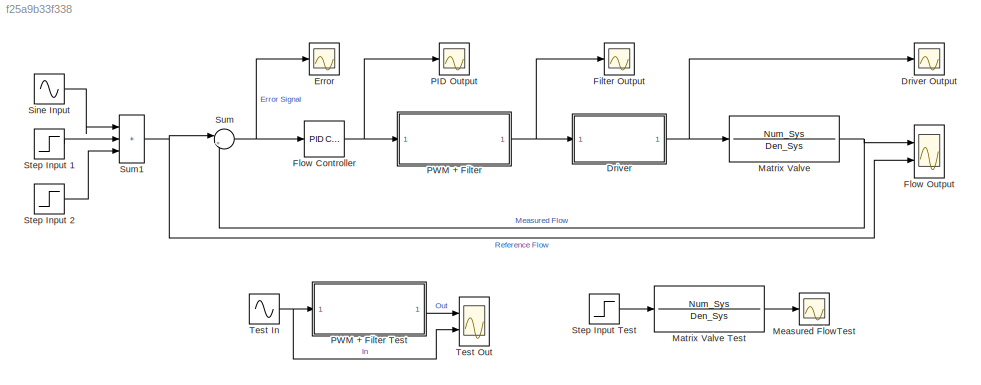
MODEL slx_f25a9b33f338
KIND model
CONFIG AbsTol = auto
CONFIG EnableMultiTasking = off
CONFIG FixedStep = auto
CONFIG MaxStep = auto
CONFIG MinStep = auto
CONFIG RelTol = 1e-3
CONFIG SampleTimeConstraint = Unconstrained
CONFIG SolverName = VariableStepAuto
CONFIG StartTime = 0.0
CONFIG StopTime = 5
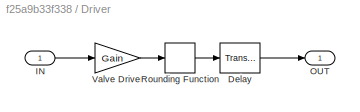
BLOCK [SubSystem] Driver
  Ports = [1, 1]
  RequestExecContextInheritance = off
BLOCK [Scope] Driver Output
  Floating = off
  NumInputPorts = 1
  Ports = [1]
  ScopeSpecificationString = Simulink.scopes.TimeScopeBlockCfg('CurrentConfiguration', extmgr.ConfigurationSet(extmgr.Configuration('Core','General UI',true),extmgr.Configuration('Core','Source UI',true),extmgr.Configuration('Sources','WiredSimulink',true,'DataLoggingVariableName','ScopeData1'),extmgr.Configuration('Visuals','Time Domain',true,'SerializedDisplays',{struct('MinYLimReal','-4.625','MaxYLimReal','41.625','YLabelR...<+1456ch>
BLOCK [TransportDelay] Driver/Delay
  BufferSize = 1024e2
  Commented = through
  DelayTime = Delay
  Ports = [1, 1]
BLOCK [Inport] Driver/IN
BLOCK [Outport] Driver/OUT
BLOCK [Rounding] Driver/Rounding Function
  Operator = round
BLOCK [Gain] Driver/Valve Driver
  Gain = Gain
BLOCK [Scope] Error
  Floating = off
  NumInputPorts = 1
  Ports = [1]
  ScopeSpecificationString = Simulink.scopes.TimeScopeBlockCfg('CurrentConfiguration', extmgr.ConfigurationSet(extmgr.Configuration('Core','General UI',true),extmgr.Configuration('Core','Source UI',true),extmgr.Configuration('Sources','WiredSimulink',true,'DataLoggingVariableName','ScopeData1'),extmgr.Configuration('Visuals','Time Domain',true,'SerializedDisplays',{struct('MinYLimReal','-39.95271','MaxYLimReal','59.99475','YL...<+1476ch>
BLOCK [Scope] Filter Output
  Floating = off
  NumInputPorts = 1
  Ports = [1]
  ScopeSpecificationString = Simulink.scopes.TimeScopeBlockCfg('CurrentConfiguration', extmgr.ConfigurationSet(extmgr.Configuration('Core','General UI',true),extmgr.Configuration('Core','Source UI',true),extmgr.Configuration('Sources','WiredSimulink',true,'DataLoggingVariableName','ScopeData6'),extmgr.Configuration('Visuals','Time Domain',true,'SerializedDisplays',{struct('MinYLimReal','-437.37609','MaxYLimReal','3936.38482',...<+1488ch>
BLOCK [Reference] Flow Controller  REF=pid_lib/PID Controller
  Ports = [1, 1]
  SourceBlock = pid_lib/PID Controller
  SourceProductBaseCode = SL
  SourceType = PID 1dof
BLOCK [Scope] Flow Output
  Floating = off
  NumInputPorts = 2
  Ports = [2]
  ScopeSpecificationString = Simulink.scopes.TimeScopeBlockCfg('CurrentConfiguration', extmgr.ConfigurationSet(extmgr.Configuration('Core','General UI',true),extmgr.Configuration('Core','Source UI',true),extmgr.Configuration('Sources','WiredSimulink',true),extmgr.Configuration('Visuals','Time Domain',true,'SerializedDisplays',{struct('MinYLimReal','-7.52774','MaxYLimReal','67.74864','YLabelReal','','MinYLimMag','0.00000','Max...<+1585ch>
BLOCK [TransferFcn] Matrix Valve
  Denominator = Den_Sys
  Numerator = Num_Sys
BLOCK [TransferFcn] Matrix Valve Test
  Commented = on
  Denominator = Den_Sys
  Numerator = Num_Sys
BLOCK [Scope] Measured FlowTest
  Commented = on
  Floating = off
  NumInputPorts = 1
  Ports = [1]
  ScopeSpecificationString = Simulink.scopes.TimeScopeBlockCfg('CurrentConfiguration', extmgr.ConfigurationSet(extmgr.Configuration('Core','General UI',true),extmgr.Configuration('Core','Source UI',true),extmgr.Configuration('Sources','WiredSimulink',true,'DataLoggingVariableName','ScopeData3'),extmgr.Configuration('Visuals','Time Domain',true,'SerializedDisplays',{struct('MinYLimReal','-1.75','MaxYLimReal','15.75','YLabelRea...<+1460ch>
BLOCK [Scope] PID Output
  Floating = off
  NumInputPorts = 1
  Ports = [1]
  ScopeSpecificationString = Simulink.scopes.TimeScopeBlockCfg('CurrentConfiguration', extmgr.ConfigurationSet(extmgr.Configuration('Core','General UI',true),extmgr.Configuration('Core','Source UI',true),extmgr.Configuration('Sources','WiredSimulink',true,'DataLoggingVariableName','ScopeData4'),extmgr.Configuration('Visuals','Time Domain',true,'SerializedDisplays',{struct('MinYLimReal','-1.00000','MaxYLimReal','1.00000','YLab...<+1473ch>
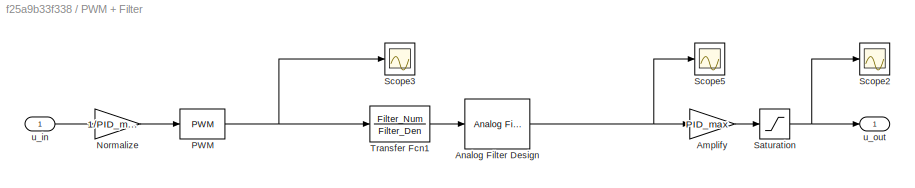
BLOCK [SubSystem] PWM + Filter
  Ports = [1, 1]
  RequestExecContextInheritance = off
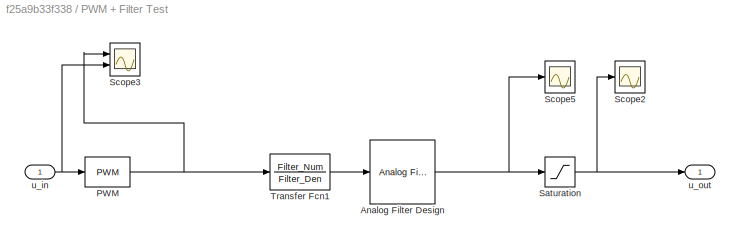
BLOCK [SubSystem] PWM + Filter Test
  Commented = on
  Ports = [1, 1]
  RequestExecContextInheritance = off
BLOCK [Reference] PWM + Filter Test/Analog Filter Design  REF=dsparch4/Analog
Filter Design
  Commented = through
  Ports = [1, 1]
  SourceBlock = dsparch4/Analog\nFilter Design
  SourceProductBaseCode = DS
  SourceType = Analog Filter Design
BLOCK [Reference] PWM + Filter Test/PWM  REF=simulink/Discontinuities/PWM
  DisableCoverage = on
  Ports = [1, 1]
  SourceBlock = simulink/Discontinuities/PWM
  SourceProductBaseCode = SL
  SourceType = PWM
BLOCK [Saturate] PWM + Filter Test/Saturation
  LowerLimit = PID_min
  UpperLimit = PID_max
BLOCK [Scope] PWM + Filter Test/Scope2
  Floating = off
  NumInputPorts = 1
  Ports = [1]
  ScopeSpecificationString = Simulink.scopes.TimeScopeBlockCfg('CurrentConfiguration', extmgr.ConfigurationSet(extmgr.Configuration('Core','General UI',true),extmgr.Configuration('Core','Source UI',true),extmgr.Configuration('Sources','WiredSimulink',true,'DataLoggingVariableName','ScopeData2'),extmgr.Configuration('Visuals','Time Domain',true,'SerializedDisplays',{struct('MinYLimReal','-0.32673','MaxYLimReal','2.94061','YLab...<+1440ch>
BLOCK [Scope] PWM + Filter Test/Scope3
  Floating = off
  NumInputPorts = 2
  Ports = [2]
  ScopeSpecificationString = Simulink.scopes.TimeScopeBlockCfg('CurrentConfiguration', extmgr.ConfigurationSet(extmgr.Configuration('Core','General UI',true),extmgr.Configuration('Core','Source UI',true),extmgr.Configuration('Sources','WiredSimulink',true,'DataLoggingVariableName','ScopeData3'),extmgr.Configuration('Visuals','Time Domain',true,'SerializedDisplays',{struct('MinYLimReal','-1.25','MaxYLimReal','1.25','YLabelReal...<+1449ch>
BLOCK [Scope] PWM + Filter Test/Scope5
  Floating = off
  NumInputPorts = 1
  Ports = [1]
  ScopeSpecificationString = Simulink.scopes.TimeScopeBlockCfg('CurrentConfiguration', extmgr.ConfigurationSet(extmgr.Configuration('Core','General UI',true),extmgr.Configuration('Core','Source UI',true),extmgr.Configuration('Sources','WiredSimulink',true,'DataLoggingVariableName','ScopeData5'),extmgr.Configuration('Visuals','Time Domain',true,'SerializedDisplays',{struct('MinYLimReal','-2.14852','MaxYLimReal','3.14303','YLab...<+1450ch>
BLOCK [TransferFcn] PWM + Filter Test/Transfer Fcn1
  Denominator = Filter_Den
  Numerator = Filter_Num
BLOCK [Inport] PWM + Filter Test/u_in
BLOCK [Outport] PWM + Filter Test/u_out
BLOCK [Gain] PWM + Filter/Amplify
  Gain = PID_max
BLOCK [Reference] PWM + Filter/Analog Filter Design  REF=dsparch4/Analog
Filter Design
  Ports = [1, 1]
  SourceBlock = dsparch4/Analog\nFilter Design
  SourceProductBaseCode = DS
  SourceType = Analog Filter Design
BLOCK [Gain] PWM + Filter/Normalize
  Gain = 1/PID_max
BLOCK [Reference] PWM + Filter/PWM  REF=simulink/Discontinuities/PWM
  DisableCoverage = on
  Ports = [1, 1]
  SourceBlock = simulink/Discontinuities/PWM
  SourceProductBaseCode = SL
  SourceType = PWM
BLOCK [Saturate] PWM + Filter/Saturation
  Commented = through
  LowerLimit = PID_min
  UpperLimit = PID_max
BLOCK [Scope] PWM + Filter/Scope2
  Floating = off
  NumInputPorts = 1
  Ports = [1]
  ScopeSpecificationString = Simulink.scopes.TimeScopeBlockCfg('CurrentConfiguration', extmgr.ConfigurationSet(extmgr.Configuration('Core','General UI',true),extmgr.Configuration('Core','Source UI',true),extmgr.Configuration('Sources','WiredSimulink',true,'DataLoggingVariableName','ScopeData2'),extmgr.Configuration('Visuals','Time Domain',true,'SerializedDisplays',{struct('MinYLimReal','-1.12257','MaxYLimReal','10.10317','YLa...<+1471ch>
BLOCK [Scope] PWM + Filter/Scope3
  Floating = off
  NumInputPorts = 1
  Ports = [1]
  ScopeSpecificationString = Simulink.scopes.TimeScopeBlockCfg('CurrentConfiguration', extmgr.ConfigurationSet(extmgr.Configuration('Core','General UI',true),extmgr.Configuration('Core','Source UI',true),extmgr.Configuration('Sources','WiredSimulink',true,'DataLoggingVariableName','ScopeData3'),extmgr.Configuration('Visuals','Time Domain',true,'SerializedDisplays',{struct('MinYLimReal','-0.125','MaxYLimReal','1.125','YLabelRe...<+1448ch>
BLOCK [Scope] PWM + Filter/Scope5
  Floating = off
  NumInputPorts = 1
  Ports = [1]
  ScopeSpecificationString = Simulink.scopes.TimeScopeBlockCfg('CurrentConfiguration', extmgr.ConfigurationSet(extmgr.Configuration('Core','General UI',true),extmgr.Configuration('Core','Source UI',true),extmgr.Configuration('Sources','WiredSimulink',true,'DataLoggingVariableName','ScopeData5'),extmgr.Configuration('Visuals','Time Domain',true,'SerializedDisplays',{struct('MinYLimReal','-0.1304','MaxYLimReal','1.17362','YLabe...<+1475ch>
BLOCK [TransferFcn] PWM + Filter/Transfer Fcn1
  Commented = through
  Denominator = Filter_Den
  Numerator = Filter_Num
BLOCK [Inport] PWM + Filter/u_in
BLOCK [Outport] PWM + Filter/u_out
BLOCK [Sin] Sine Input
  Amplitude = 5
  Bias = 5
  Frequency = 10
  Ports = [0, 1]
  SampleTime = 0
BLOCK [Step] Step Input 1
  After = 50
  SampleTime = 0
  Time = 0.5
BLOCK [Step] Step Input 2
  After = -30
  SampleTime = 0
  Time = 3
BLOCK [Step] Step Input Test
  After = 50
  Commented = on
  SampleTime = 0
BLOCK [Sum] Sum
  Inputs = |+-
  Ports = [2, 1]
BLOCK [Sum] Sum1
  IconShape = rectangular
  Inputs = |+++
  Ports = [3, 1]
BLOCK [Sin] Test In
  Amplitude = 0.5
  Bias = 0.5
  Commented = on
  Frequency = 24
  Ports = [0, 1]
  SampleTime = 0
BLOCK [Scope] Test Out
  Commented = on
  Floating = off
  NumInputPorts = 2
  Ports = [2]
  ScopeSpecificationString = Simulink.scopes.TimeScopeBlockCfg('CurrentConfiguration', extmgr.ConfigurationSet(extmgr.Configuration('Core','General UI',true),extmgr.Configuration('Core','Source UI',true),extmgr.Configuration('Sources','WiredSimulink',true,'DataLoggingVariableName','ScopeData2'),extmgr.Configuration('Visuals','Time Domain',true,'SerializedDisplays',{struct('MinYLimReal','-0.32335','MaxYLimReal','2.91016','YLab...<+1487ch>
LINE Driver/Delay:1 -> Driver/OUT:1
LINE Driver/IN:1 -> Driver/Valve Driver:1
LINE Driver/Rounding Function:1 -> Driver/Delay:1
LINE Driver/Valve Driver:1 -> Driver/Rounding Function:1
NET Driver:1 -> Driver Output:1, Matrix Valve:1
NET Flow Controller:1 -> PID Output:1, PWM + Filter:1
LINE Matrix Valve Test:1 -> Measured FlowTest:1
NET Matrix Valve:1 -> Flow Output:1, Sum:2
NET PWM + Filter Test/Analog Filter Design:1 -> PWM + Filter Test/Saturation:1, PWM + Filter Test/Scope5:1
NET PWM + Filter Test/PWM:1 -> PWM + Filter Test/Scope3:1, PWM + Filter Test/Transfer Fcn1:1
NET PWM + Filter Test/Saturation:1 -> PWM + Filter Test/Scope2:1, PWM + Filter Test/u_out:1
LINE PWM + Filter Test/Transfer Fcn1:1 -> PWM + Filter Test/Analog Filter Design:1
NET PWM + Filter Test/u_in:1 -> PWM + Filter Test/PWM:1, PWM + Filter Test/Scope3:2
LINE PWM + Filter Test:1 -> Test Out:1
LINE PWM + Filter/Amplify:1 -> PWM + Filter/Saturation:1
NET PWM + Filter/Analog Filter Design:1 -> PWM + Filter/Amplify:1, PWM + Filter/Scope5:1
LINE PWM + Filter/Normalize:1 -> PWM + Filter/PWM:1
NET PWM + Filter/PWM:1 -> PWM + Filter/Scope3:1, PWM + Filter/Transfer Fcn1:1
NET PWM + Filter/Saturation:1 -> PWM + Filter/Scope2:1, PWM + Filter/u_out:1
LINE PWM + Filter/Transfer Fcn1:1 -> PWM + Filter/Analog Filter Design:1
LINE PWM + Filter/u_in:1 -> PWM + Filter/Normalize:1
NET PWM + Filter:1 -> Driver:1, Filter Output:1
LINE Sine Input:1 -> Sum1:1
LINE Step Input 1:1 -> Sum1:2
LINE Step Input 2:1 -> Sum1:3
LINE Step Input Test:1 -> Matrix Valve Test:1
NET Sum1:1 -> Flow Output:2, Sum:1
NET Sum:1 -> Error:1, Flow Controller:1
NET Test In:1 -> PWM + Filter Test:1, Test Out:2
note: NET lines group one-source signal fan-out (src -> all destinations, sorted); 1:1 wires keep LINE
